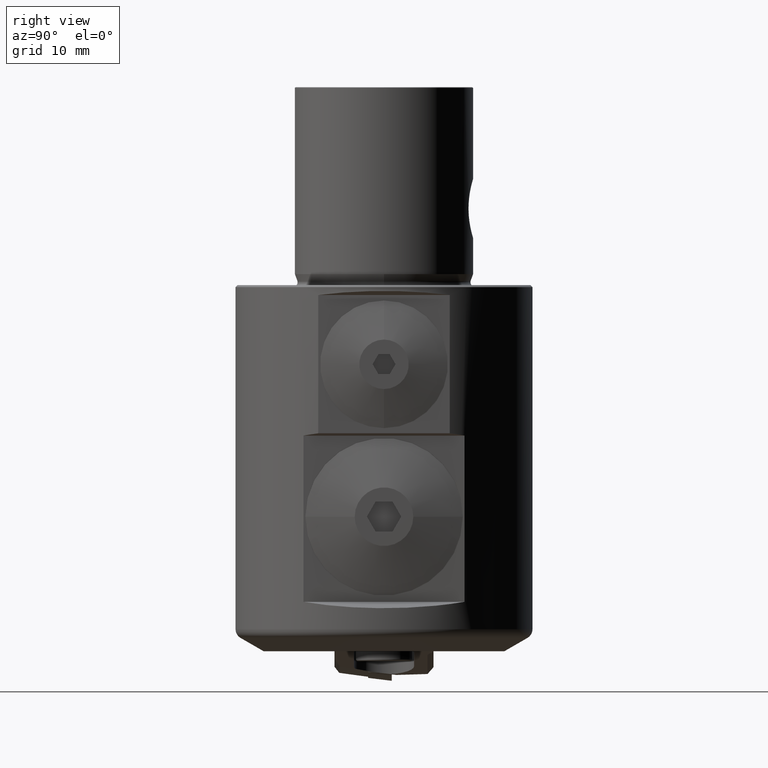
[diagram: clean part render]
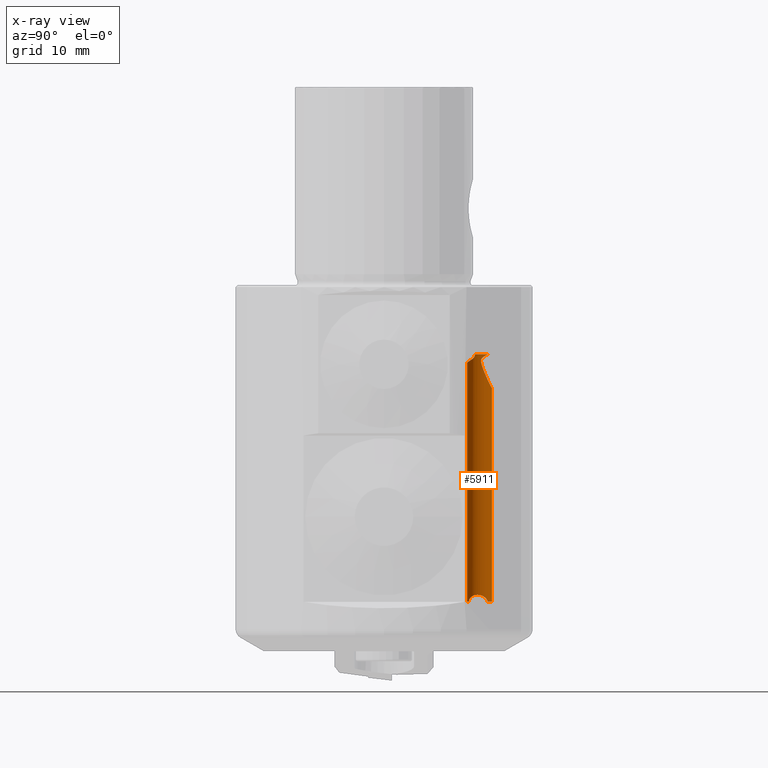
[diagram: x-ray — body ghosted, one internal face saturated and labeled with its STEP entity id]
A machine part, right view, then the same camera in x-ray: the body is ghosted and one INTERNAL B-rep face — a face not visible from any outside direction — is saturated and labeled: STEP entity #5911.
In plain terms, the highlighted cylindrical surface (edge-blend (fillet) strip) has radius 1.25 mm, axis along (-0, -0, 1).
Its self-contained STEP definition (entity closure, byte-faithful):
#2031=EDGE_CURVE('NONE',#3385,#2819,#5971,.T.);
#2607=EDGE_CURVE('NONE',#4941,#3607,#6603,.T.);
#2619=EDGE_CURVE('NONE',#4433,#4907,#6616,.T.);
#2819=VERTEX_POINT('NONE',#6841);
#2913=EDGE_CURVE('NONE',#4907,#3607,#6947,.T.);
#3385=VERTEX_POINT('NONE',#7471);
#3607=VERTEX_POINT('NONE',#7725);
#3823=EDGE_CURVE('NONE',#4661,#3909,#7961,.T.);
#3909=VERTEX_POINT('NONE',#8059);
#4195=EDGE_CURVE('NONE',#5101,#4661,#8376,.F.);
#4433=VERTEX_POINT('NONE',#8638);
#4661=VERTEX_POINT('NONE',#8886);
#4875=EDGE_CURVE('NONE',#2819,#5739,#9117,.T.);
#4907=VERTEX_POINT('NONE',#9153);
#4941=VERTEX_POINT('NONE',#9190);
#5059=EDGE_CURVE('NONE',#5101,#3385,#9318,.T.);
#5101=VERTEX_POINT('NONE',#9362);
#5157=EDGE_CURVE('NONE',#4433,#5739,#9425,.F.);
#5249=EDGE_CURVE('NONE',#4941,#3909,#9519,.T.);
#5739=VERTEX_POINT('NONE',#10058);
#5911=ADVANCED_FACE('NONE',(#10260),#10261,.F.);
#5971=LINE('',#10326,#10327);
#6603=LINE('',#12375,#12376);
#6616=B_SPLINE_CURVE_WITH_KNOTS('',3,(#12395,#12396,#12397,#12398,#12399,#12400,#12401,#12402,#12403,#12404,#12405,#12406,#12407,#12408,#12409,#12410,#12411,#12412,#12413,#12414,#12415,#12416,#12417,#12418,#12419,#12420,#12421,#12422,#12423,#12424,#12425,#12426,#12427,#12428,#12429,#12430,#12431,#12432,#12433,#12434,#12435,#12436,#12437,#12438,#12439,#12440,#12441,#12442,#12443,#12444,#12445,#12446,#12447,#12448,#12449,#12450,#12451,#12452,#12453,#12454,#12455,#12456,#12457,#12458,#12459,#12460,#12461,#12462,#12463,#12464,#12465,#12466,#12467,#12468,#12469,#12470,#12471,#12472,#12473,#12474,#12475,#12476,#12477,#12478,#12479,#12480,#12481,#12482,#12483,#12484,#12485,#12486,#12487,#12488,#12489,#12490,#12491,#12492,#12493,#12494,#12495,#12496,#12497,#12498,#12499,#12500,#12501,#12502,#12503,#12504,#12505,#12506,#12507,#12508,#12509,#12510,#12511,#12512,#12513,#12514,#12515),.UNSPECIFIED.,.F.,.F.,(4,2,2,2,2,2,2,2,2,2,2,2,2,2,2,2,2,2,2,2,2,2,2,2,2,2,2,2,2,2,2,2,2,2,2,2,2,2,2,2,3,2,2,2,2,2,2,2,2,2,2,2,2,2,2,2,2,2,2,4),(-11.5365470004245,-11.23110935641,-10.9256717123955,-10.5484807908333,-10.3598853300522,-10.1712898692711,-10.0629567419816,-9.95462361469214,-9.73795736011315,-9.59705060385309,-9.45614384759303,-9.14952027422149,-8.84289670084996,-8.65169935049167,-8.46050200013338,-8.30345388366444,-8.14640576719549,-7.77890788196061,-7.41140999672572,-7.12461264874379,-6.83781530076185,-6.60561501329223,-6.48951486955742,-6.37341472582261,-6.05879165683006,-5.7441685878375,-5.27443510032478,-4.80470161281206,-4.04241157336173,-3.66126655363657,-3.47069404377399,-3.28012153391141,-3.07162769021202,-2.86313384651264,-2.47908204438133,-2.09503024225002,-1.61036804410629,-1.12570584596257,-0.640450281126018,-0.320225140563011,0.0,0.189886923469585,0.379773846939169,0.601056226035828,0.846906839294732,1.09275745255364,1.35961062493393,1.62646379731423,1.82445869834441,2.0224535993746,2.50462256871359,2.98679153805257,3.20666515179599,3.4265387655394,3.61378594546459,3.80103312538979,4.00610294360625,4.21117276182272,4.62131239825565,5.20650487187407),.UNSPECIFIED.);
#6841=CARTESIAN_POINT('',(-1.39755738355847,8.40357292619032,-7.85786083414262));
#6947=B_SPLINE_CURVE_WITH_KNOTS('',3,(#13584,#13585,#13586,#13587,#13588,#13589,#13590,#13591,#13592,#13593,#13594,#13595,#13596,#13597,#13598,#13599,#13600,#13601,#13602,#13603,#13604,#13605,#13606,#13607),.UNSPECIFIED.,.F.,.F.,(4,2,2,2,2,2,2,2,2,2,2,4),(4.39907328251806,5.41825940447634,5.94540453186222,6.20897709555516,6.4725496592481,6.63435642800295,6.7961631967578,7.03694043699321,7.27771767722862,7.59988317496715,7.92204867270569,8.56637966818275),.UNSPECIFIED.);
#7471=CARTESIAN_POINT('',(-1.3975573835584,8.40357292619033,-32.0));
#7725=CARTESIAN_POINT('',(-1.39755738354537,10.9035729261966,-10.3496145570443));
#7961=B_SPLINE_CURVE_WITH_KNOTS('',3,(#16061,#16062,#16063,#16064,#16065,#16066,#16067,#16068,#16069,#16070,#16071,#16072,#16073,#16074,#16075,#16076,#16077,#16078,#16079,#16080,#16081,#16082,#16083,#16084,#16085,#16086,#16087,#16088,#16089,#16090,#16091,#16092,#16093,#16094,#16095),.UNSPECIFIED.,.F.,.F.,(4,2,2,2,2,2,2,2,2,2,2,2,2,3,2,2,4),(-4.43116950336568,-4.01481923219622,-3.56680899807894,-3.11879876396166,-2.91438041926835,-2.70996207457504,-2.30112538518843,-1.93026238358463,-1.55939938198083,-1.18853638037703,-0.817673378773227,-0.408836689386614,-0.204418344693307,0.0,0.448010234117281,0.896020468234562,1.31237073940402),.UNSPECIFIED.);
#8059=CARTESIAN_POINT('',(-2.33232398178692,10.4834593080742,-32.0));
#8376=B_SPLINE_CURVE_WITH_KNOTS('',3,(#17129,#17130,#17131,#17132,#17133,#17134,#17135,#17136,#17137,#17138,#17139,#17140,#17141,#17142,#17143,#17144,#17145,#17146,#17147,#17148,#17149,#17150,#17151,#17152,#17153,#17154,#17155,#17156,#17157,#17158,#17159,#17160,#17161,#17162,#17163),.UNSPECIFIED.,.F.,.F.,(4,2,2,3,2,2,2,2,2,2,2,2,2,2,2,2,4),(-1.31237073940402,-0.896020468234562,-0.448010234117281,0.0,0.204418344693307,0.408836689386614,0.817673378773227,1.18853638037703,1.55939938198083,1.93026238358463,2.30112538518843,2.70996207457504,2.91438041926835,3.11879876396166,3.56680899807894,4.01481923219622,4.43116950336568),.UNSPECIFIED.);
#8638=CARTESIAN_POINT('',(-2.31155135492843,10.5062833226904,-7.0));
#8886=CARTESIAN_POINT('',(-2.63566458189184,9.48155384168245,-31.300513887052));
#9117=B_SPLINE_CURVE_WITH_KNOTS('',3,(#19131,#19132,#19133,#19134,#19135,#19136,#19137,#19138,#19139,#19140,#19141,#19142,#19143,#19144,#19145,#19146,#19147,#19148,#19149,#19150,#19151,#19152,#19153,#19154,#19155,#19156,#19157,#19158,#19159,#19160,#19161,#19162,#19163,#19164,#19165,#19166,#19167,#19168,#19169,#19170,#19171,#19172,#19173,#19174,#19175,#19176,#19177,#19178,#19179,#19180,#19181,#19182,#19183,#19184,#19185,#19186,#19187,#19188,#19189,#19190,#19191,#19192,#19193,#19194,#19195,#19196,#19197,#19198,#19199,#19200,#19201,#19202,#19203,#19204,#19205,#19206,#19207,#19208,#19209,#19210,#19211,#19212,#19213,#19214,#19215,#19216,#19217,#19218,#19219,#19220,#19221,#19222,#19223,#19224,#19225,#19226,#19227,#19228,#19229,#19230,#19231,#19232,#19233,#19234,#19235,#19236,#19237,#19238,#19239,#19240,#19241,#19242,#19243,#19244,#19245,#19246,#19247,#19248,#19249,#19250,#19251),.UNSPECIFIED.,.F.,.F.,(4,2,2,2,2,2,2,2,2,2,2,2,2,2,2,2,2,2,2,2,2,2,2,2,2,2,2,2,2,2,2,2,2,2,2,2,2,2,2,2,3,2,2,2,2,2,2,2,2,2,2,2,2,2,2,2,2,2,2,4),(-11.5365470004245,-11.23110935641,-10.9256717123955,-10.5484807908333,-10.3598853300522,-10.1712898692711,-10.0629567419816,-9.95462361469214,-9.73795736011315,-9.59705060385309,-9.45614384759303,-9.14952027422149,-8.84289670084996,-8.65169935049167,-8.46050200013338,-8.30345388366444,-8.14640576719549,-7.77890788196061,-7.41140999672572,-7.12461264874379,-6.83781530076185,-6.60561501329223,-6.48951486955742,-6.37341472582261,-6.05879165683006,-5.7441685878375,-5.27443510032478,-4.80470161281206,-4.04241157336173,-3.66126655363657,-3.47069404377399,-3.28012153391141,-3.07162769021202,-2.86313384651264,-2.47908204438133,-2.09503024225002,-1.61036804410629,-1.12570584596257,-0.640450281126018,-0.320225140563011,0.0,0.189886923469585,0.379773846939169,0.601056226035828,0.846906839294732,1.09275745255364,1.35961062493393,1.62646379731423,1.82445869834441,2.0224535993746,2.50462256871359,2.98679153805257,3.20666515179599,3.4265387655394,3.61378594546459,3.80103312538979,4.00610294360625,4.21117276182272,4.62131239825565,5.20650487187407),.UNSPECIFIED.);
#9153=CARTESIAN_POINT('',(-1.65350283058219,10.8770891411004,-10.3604591425008));
#9190=CARTESIAN_POINT('',(-1.3975573835584,10.9035729261903,-32.0));
#9318=CIRCLE('',#20152,1.25);
#9362=CARTESIAN_POINT('',(-1.99211279879495,8.55402581114118,-32.0));
#9425=CIRCLE('',#20586,1.25);
#9519=CIRCLE('',#20773,1.25);
#10058=CARTESIAN_POINT('',(-2.55102327181351,9.17189207268683,-7.0));
#10260=FACE_OUTER_BOUND('',#22813,.T.);
#10261=CYLINDRICAL_SURFACE('',#22814,1.25);
#10326=CARTESIAN_POINT('',(-1.3975573835584,8.40357292619032,-10.6833601636645));
#10327=VECTOR('',#22874,1000.0);
#12375=CARTESIAN_POINT('',(-1.3975573835584,10.9035729261903,-10.6833601636645));
#12376=VECTOR('',#23529,1000.0);
#12395=CARTESIAN_POINT('',(-0.259682372580339,9.13613649589993,-5.65031564858466));
#12396=CARTESIAN_POINT('',(-0.240034141508872,9.17934418255932,-5.74038694123965));
#12397=CARTESIAN_POINT('',(-0.221505760737178,9.22701258647837,-5.83998129436405));
#12398=CARTESIAN_POINT('',(-0.190923948502823,9.32328987723418,-6.03972157861944));
#12399=CARTESIAN_POINT('',(-0.178832392768359,9.37193066168875,-6.13984629392099));
#12400=CARTESIAN_POINT('',(-0.159394927975035,9.47280770301482,-6.34287771622979));
#12401=CARTESIAN_POINT('',(-0.151383600459477,9.53497812243579,-6.46581210110095));
#12402=CARTESIAN_POINT('',(-0.147234502745697,9.63566394972516,-6.64406701098731));
#12403=CARTESIAN_POINT('',(-0.147123435439577,9.6704824231644,-6.7023870340003));
#12404=CARTESIAN_POINT('',(-0.150316734770835,9.74446699116382,-6.81214748960025));
#12405=CARTESIAN_POINT('',(-0.153535722561911,9.78351953345543,-6.86366688642753));
#12406=CARTESIAN_POINT('',(-0.163275994108106,9.85282516670303,-6.93365362581182));
#12407=CARTESIAN_POINT('',(-0.168041808773527,9.88115293306742,-6.95802215610893));
#12408=CARTESIAN_POINT('',(-0.18113070135157,9.94306784179791,-6.99844803691743));
#12409=CARTESIAN_POINT('',(-0.189508319112525,9.97673379523446,-7.01436684892297));
#12410=CARTESIAN_POINT('',(-0.220642969938647,10.0809182102869,-7.04633642670336));
#12411=CARTESIAN_POINT('',(-0.250305576695184,10.1550632978442,-7.046807735075));
#12412=CARTESIAN_POINT('',(-0.304053282010464,10.2609766842164,-7.03680603008055));
#12413=CARTESIAN_POINT('',(-0.329592860850518,10.3051250705757,-7.0294586407444));
#12414=CARTESIAN_POINT('',(-0.38584402266892,10.389442815822,-7.01175351366134));
#12415=CARTESIAN_POINT('',(-0.416562167758232,10.4296278979736,-7.00149163778102));
#12416=CARTESIAN_POINT('',(-0.511286559289921,10.5407196980606,-6.97083854230305));
#12417=CARTESIAN_POINT('',(-0.591324222347012,10.6149681387011,-6.94640486691129));
#12418=CARTESIAN_POINT('',(-0.769194419442613,10.7395990081854,-6.90255653351781));
#12419=CARTESIAN_POINT('',(-0.867068964281463,10.7899395061371,-6.88319314596514));
#12420=CARTESIAN_POINT('',(-1.02111498791232,10.8472124805515,-6.86026249411004));
#12421=CARTESIAN_POINT('',(-1.08784214208139,10.8665820399021,-6.85215944656786));
#12422=CARTESIAN_POINT('',(-1.22399977489514,10.8934085593627,-6.84030055277166));
#12423=CARTESIAN_POINT('',(-1.29343367330575,10.9008570615227,-6.83656484769604));
#12424=CARTESIAN_POINT('',(-1.40942095553143,10.9046117415468,-6.83376445438866));
#12425=CARTESIAN_POINT('',(-1.46688729999888,10.9029628513409,-6.83376095226089));
#12426=CARTESIAN_POINT('',(-1.58087511247515,10.8913840719818,-6.83718188886828));
#12427=CARTESIAN_POINT('',(-1.63739658757794,10.8814563238937,-6.84061333412727));
#12428=CARTESIAN_POINT('',(-1.80683475793651,10.8409602816521,-6.85554094016526));
#12429=CARTESIAN_POINT('',(-1.92950208384939,10.792032656738,-6.87476853443132));
#12430=CARTESIAN_POINT('',(-2.15026557713969,10.6597966087052,-6.93048786677523));
#12431=CARTESIAN_POINT('',(-2.2484087722304,10.5765756506571,-6.96700080853866));
#12432=CARTESIAN_POINT('',(-2.38633415469425,10.4236187961049,-7.03874832717125));
#12433=CARTESIAN_POINT('',(-2.44332882955836,10.3447040669358,-7.07711244334147));
#12434=CARTESIAN_POINT('',(-2.53476917359774,10.1808769257668,-7.16542819561874));
#12435=CARTESIAN_POINT('',(-2.56926033390821,10.0959025551056,-7.2152177056802));
#12436=CARTESIAN_POINT('',(-2.61068020743527,9.96145995663026,-7.31590687630726));
#12437=CARTESIAN_POINT('',(-2.62406437057254,9.89846805709145,-7.37252161294586));
#12438=CARTESIAN_POINT('',(-2.63438515809029,9.83579616940277,-7.47541181100476));
#12439=CARTESIAN_POINT('',(-2.63643824821132,9.82020480222327,-7.51296176582107));
#12440=CARTESIAN_POINT('',(-2.63884936844579,9.80117446086506,-7.59068163910794));
#12441=CARTESIAN_POINT('',(-2.63923901577076,9.7975407150407,-7.63080275238828));
#12442=CARTESIAN_POINT('',(-2.63923901577076,9.7975407150407,-7.77437715663073));
#12443=CARTESIAN_POINT('',(-2.63655374948232,9.82183094689029,-7.88512000607231));
#12444=CARTESIAN_POINT('',(-2.62691839995029,9.88181437985211,-8.10510112828944));
#12445=CARTESIAN_POINT('',(-2.61970491100355,9.9184230844056,-8.21407711889735));
#12446=CARTESIAN_POINT('',(-2.59823368573031,10.005357403627,-8.4597163990022));
#12447=CARTESIAN_POINT('',(-2.57921649463592,10.0669654864206,-8.61931961021953));
#12448=CARTESIAN_POINT('',(-2.52684636233804,10.1938673827457,-8.93457313406245));
#12449=CARTESIAN_POINT('',(-2.49335337984781,10.259190336954,-9.09018843547117));
#12450=CARTESIAN_POINT('',(-2.39417519515952,10.4168090385897,-9.45621245778239));
#12451=CARTESIAN_POINT('',(-2.30772733018617,10.5244505853165,-9.69578467145272));
#12452=CARTESIAN_POINT('',(-2.1262564988678,10.6721905712947,-10.0031659531047));
#12453=CARTESIAN_POINT('',(-2.05793655468033,10.7187513499454,-10.0962436052494));
#12454=CARTESIAN_POINT('',(-1.93757410628749,10.781816632171,-10.2137196692079));
#12455=CARTESIAN_POINT('',(-1.89454815534911,10.8016546909799,-10.249077614011));
#12456=CARTESIAN_POINT('',(-1.79954360035856,10.838266412895,-10.3096547698546));
#12457=CARTESIAN_POINT('',(-1.74769324181138,10.8550952155348,-10.3350415896039));
#12458=CARTESIAN_POINT('',(-1.62295722754053,10.8849073581723,-10.3703551384703));
#12459=CARTESIAN_POINT('',(-1.54885590274155,10.8965181995595,-10.3766176491557));
#12460=CARTESIAN_POINT('',(-1.40348450962014,10.905678773836,-10.3563561468006));
#12461=CARTESIAN_POINT('',(-1.33217424291313,10.9033733670424,-10.3301878817198));
#12462=CARTESIAN_POINT('',(-1.15842850549418,10.8856970882728,-10.237926144453));
#12463=CARTESIAN_POINT('',(-1.05789193816938,10.860178701541,-10.1484100826159));
#12464=CARTESIAN_POINT('',(-0.881897136885676,10.7960984712429,-9.94676786077154));
#12465=CARTESIAN_POINT('',(-0.806635632712167,10.757446535544,-9.83449870750589));
#12466=CARTESIAN_POINT('',(-0.667175012561253,10.6720833618367,-9.59551037903923));
#12467=CARTESIAN_POINT('',(-0.594788152365488,10.6156183956262,-9.4439572195726));
#12468=CARTESIAN_POINT('',(-0.470023061822348,10.4959801756478,-9.13485888164565));
#12469=CARTESIAN_POINT('',(-0.417445214813673,10.4328337267808,-8.97738393868034));
#12470=CARTESIAN_POINT('',(-0.333072903472561,10.3129310993506,-8.68923225715878));
#12471=CARTESIAN_POINT('',(-0.290063724872317,10.2378857761639,-8.51546780700654));
#12472=CARTESIAN_POINT('',(-0.239315418458741,10.1261773016452,-8.27664858159798));
#12473=CARTESIAN_POINT('',(-0.219474364549142,10.0755629782592,-8.17278571889788));
#12474=CARTESIAN_POINT('',(-0.185073677210528,9.96315018587477,-7.97250392746365));
#12475=CARTESIAN_POINT('',(-0.170226775645058,9.90228254719796,-7.87561335245997));
#12476=CARTESIAN_POINT('',(-0.159722297631439,9.82753930239041,-7.80013556299379));
#12477=CARTESIAN_POINT('',(-0.153493358176052,9.78321809518698,-7.75537878591246));
#12478=CARTESIAN_POINT('',(-0.148168374884314,9.72743590376947,-7.71450739769864));
#12479=CARTESIAN_POINT('',(-0.147046829031624,9.60211921453419,-7.66851763759476));
#12480=CARTESIAN_POINT('',(-0.15179128914,9.53286663245896,-7.66262318191706));
#12481=CARTESIAN_POINT('',(-0.171880533243707,9.39734526846291,-7.66647653429205));
#12482=CARTESIAN_POINT('',(-0.192836738206678,9.31238697951861,-7.67979829172095));
#12483=CARTESIAN_POINT('',(-0.243017019634479,9.16774477034821,-7.70819697847907));
#12484=CARTESIAN_POINT('',(-0.279450140691217,9.08792737479152,-7.72741014907418));
#12485=CARTESIAN_POINT('',(-0.368913551584914,8.93802379188738,-7.76516882149996));
#12486=CARTESIAN_POINT('',(-0.421974341229244,8.86794004886728,-7.78365173064045));
#12487=CARTESIAN_POINT('',(-0.535462980536661,8.74421645042407,-7.81558981524956));
#12488=CARTESIAN_POINT('',(-0.607293630540064,8.68034727058811,-7.83171423885819));
#12489=CARTESIAN_POINT('',(-0.764893785288089,8.57125053979628,-7.85667675406081));
#12490=CARTESIAN_POINT('',(-0.850685865934601,8.52604315882224,-7.8654604258159));
#12491=CARTESIAN_POINT('',(-0.994358926735899,8.46855161075442,-7.87333932069186));
#12492=CARTESIAN_POINT('',(-1.06344016410516,8.44690115306995,-7.87489515394491));
#12493=CARTESIAN_POINT('',(-1.20429581090455,8.41650338533418,-7.87263597020646));
#12494=CARTESIAN_POINT('',(-1.27606954996099,8.40775402539273,-7.86880676122207));
#12495=CARTESIAN_POINT('',(-1.50173791396497,8.39767085465784,-7.84945055935386));
#12496=CARTESIAN_POINT('',(-1.67137110274729,8.42283657068133,-7.82130162612886));
#12497=CARTESIAN_POINT('',(-1.98113451753082,8.5359309210182,-7.73708132678958));
#12498=CARTESIAN_POINT('',(-2.12132311296559,8.62384182109432,-7.68120094934053));
#12499=CARTESIAN_POINT('',(-2.28110105846103,8.76680382782702,-7.58741653738124));
#12500=CARTESIAN_POINT('',(-2.3310241986888,8.81933984267799,-7.55263775305433));
#12501=CARTESIAN_POINT('',(-2.41754198621711,8.92766897779241,-7.47386978085692));
#12502=CARTESIAN_POINT('',(-2.45415935030062,8.98342501219816,-7.42985454901693));
#12503=CARTESIAN_POINT('',(-2.5047236551963,9.07145361721099,-7.33979575182398));
#12504=CARTESIAN_POINT('',(-2.52444652569525,9.11190345320062,-7.28793903346849));
#12505=CARTESIAN_POINT('',(-2.54761980553034,9.16301588231799,-7.16874760755458));
#12506=CARTESIAN_POINT('',(-2.55145547451277,9.17292836344998,-7.10116775216961));
#12507=CARTESIAN_POINT('',(-2.55145547451277,9.17292836344998,-6.97039541945573));
#12508=CARTESIAN_POINT('',(-2.54742619437411,9.16313492376328,-6.90097705170721));
#12509=CARTESIAN_POINT('',(-2.5352516489004,9.1355193953856,-6.76048993250152));
#12510=CARTESIAN_POINT('',(-2.52697732181431,9.11748141377216,-6.68947492123064));
#12511=CARTESIAN_POINT('',(-2.49764896638524,9.05839892522484,-6.47706350817758));
#12512=CARTESIAN_POINT('',(-2.47192113117553,9.01265641653121,-6.33655644276855));
#12513=CARTESIAN_POINT('',(-2.40519983100104,8.910397187116,-6.02806407437363));
#12514=CARTESIAN_POINT('',(-2.35316408674947,8.84248803625177,-5.83144560097488));
#12515=CARTESIAN_POINT('',(-2.2883204348908,8.7766229923965,-5.6387538220034));
#13584=CARTESIAN_POINT('',(-2.57064467521629,10.0852744505689,-8.66359853451214));
#13585=CARTESIAN_POINT('',(-2.52233924667476,10.2165375772324,-8.99693874674317));
#13586=CARTESIAN_POINT('',(-2.4446985523244,10.3588936924302,-9.3275269076988));
#13587=CARTESIAN_POINT('',(-2.26442037105315,10.5588190655491,-9.76708564294301));
#13588=CARTESIAN_POINT('',(-2.18386512526977,10.6331459207413,-9.92506159374269));
#13589=CARTESIAN_POINT('',(-2.0282014911094,10.7346023632172,-10.1259534854704));
#13590=CARTESIAN_POINT('',(-1.97071857332286,10.7666641990899,-10.1867799226084));
#13591=CARTESIAN_POINT('',(-1.84171742206828,10.824131696205,-10.2879252665208));
#13592=CARTESIAN_POINT('',(-1.77051084012575,10.8496417665084,-10.3285817842477));
#13593=CARTESIAN_POINT('',(-1.63755018832153,10.8814196130263,-10.366223779643));
#13594=CARTESIAN_POINT('',(-1.58009014957225,10.8915213135754,-10.3737290904417));
#13595=CARTESIAN_POINT('',(-1.46518088945,10.903077420696,-10.3680323395971));
#13596=CARTESIAN_POINT('',(-1.40773073336169,10.9045570265531,-10.3549004942318));
#13597=CARTESIAN_POINT('',(-1.28179410038357,10.9004802713169,-10.3087317395707));
#13598=CARTESIAN_POINT('',(-1.20766159217011,10.890971134957,-10.2646740086058));
#13599=CARTESIAN_POINT('',(-1.07326998784058,10.8627265051645,-10.1589720116678));
#13600=CARTESIAN_POINT('',(-1.01279172257716,10.8441179627486,-10.0975727728193));
#13601=CARTESIAN_POINT('',(-0.8939243755952,10.7999241149495,-9.95926488560894));
#13602=CARTESIAN_POINT('',(-0.83419714680081,10.7711864341072,-9.87464244636128));
#13603=CARTESIAN_POINT('',(-0.725141424947168,10.7091729823209,-9.6984895825801));
#13604=CARTESIAN_POINT('',(-0.675951525463932,10.6758523094529,-9.60688919966346));
#13605=CARTESIAN_POINT('',(-0.540466974705163,10.5706201654575,-9.32489692315218));
#13606=CARTESIAN_POINT('',(-0.466254359594753,10.4936278207515,-9.1274875646871));
#13607=CARTESIAN_POINT('',(-0.404020359017977,10.4121137496582,-8.9283697383049));
#16061=CARTESIAN_POINT('',(-2.49452258719703,9.05426720954309,-33.2663255496327));
#16062=CARTESIAN_POINT('',(-2.43289122167737,8.94145767120925,-33.2003257468719));
#16063=CARTESIAN_POINT('',(-2.35842709145628,8.84808608201334,-33.1066395363807));
#16064=CARTESIAN_POINT('',(-2.21613329651291,8.70303338242045,-32.9023715219562));
#16065=CARTESIAN_POINT('',(-2.13645853036896,8.64252179901619,-32.7743914201257));
#16066=CARTESIAN_POINT('',(-2.009407204343,8.56094351118587,-32.4982663802196));
#16067=CARTESIAN_POINT('',(-1.96251502065063,8.53852903992792,-32.3502986390291));
#16068=CARTESIAN_POINT('',(-1.96251502065063,8.53852903992792,-32.1328224460922));
#16069=CARTESIAN_POINT('',(-1.97257691677268,8.54346345572274,-32.0650164323796));
#16070=CARTESIAN_POINT('',(-2.01154043306911,8.56452963746319,-31.9353436526611));
#16071=CARTESIAN_POINT('',(-2.04024687372272,8.58069107393162,-31.8734231408358));
#16072=CARTESIAN_POINT('',(-2.14192894569242,8.6461457491395,-31.7009513448472));
#16073=CARTESIAN_POINT('',(-2.22963244278411,8.71390406034307,-31.6027171501015));
#16074=CARTESIAN_POINT('',(-2.37775638300082,8.8710996980537,-31.4581599424695));
#16075=CARTESIAN_POINT('',(-2.45016242442888,8.96792649240716,-31.3988585653793));
#16076=CARTESIAN_POINT('',(-2.56498273368259,9.18966942062328,-31.3195656108878));
#16077=CARTESIAN_POINT('',(-2.60710051335947,9.31476978434506,-31.2996603101288));
#16078=CARTESIAN_POINT('',(-2.65003363628786,9.55825562386827,-31.2996603101288));
#16079=CARTESIAN_POINT('',(-2.65324271385183,9.6902166415569,-31.3195656108878));
#16080=CARTESIAN_POINT('',(-2.6211874646197,9.9378576935407,-31.3988585653793));
#16081=CARTESIAN_POINT('',(-2.58626475587196,10.0536094423559,-31.4581599424695));
#16082=CARTESIAN_POINT('',(-2.50083785682855,10.2519863943952,-31.6027171501015));
#16083=CARTESIAN_POINT('',(-2.44159823510372,10.3456547420755,-31.7009513448472));
#16084=CARTESIAN_POINT('',(-2.36843515980351,10.441939334193,-31.8734231408358));
#16085=CARTESIAN_POINT('',(-2.34698746616956,10.4669442977305,-31.9353436526611));
#16086=CARTESIAN_POINT('',(-2.31757879592413,10.5000663406883,-32.0650164323796));
#16087=CARTESIAN_POINT('',(-2.30981137598449,10.5081445459523,-32.1328224460922));
#16088=CARTESIAN_POINT('',(-2.30981137598449,10.5081445459523,-32.2009618943233));
#16089=CARTESIAN_POINT('',(-2.30981137598449,10.5081445459523,-32.3502986390291));
#16090=CARTESIAN_POINT('',(-2.34620941430054,10.4710437613251,-32.4982663802196));
#16091=CARTESIAN_POINT('',(-2.43769719013221,10.3509311334975,-32.7743914201257));
#16092=CARTESIAN_POINT('',(-2.49187079951173,10.2668184701644,-32.9023715219562));
#16093=CARTESIAN_POINT('',(-2.5759722834991,10.081846174591,-33.1066395363807));
#16094=CARTESIAN_POINT('',(-2.61401071286177,9.96863734874176,-33.2003257468719));
#16095=CARTESIAN_POINT('',(-2.63334211778012,9.84155188954679,-33.2663255496327));
#17129=CARTESIAN_POINT('',(-2.63334211778012,9.84155188954679,-33.2663255496327));
#17130=CARTESIAN_POINT('',(-2.61401071286177,9.96863734874176,-33.2003257468719));
#17131=CARTESIAN_POINT('',(-2.5759722834991,10.081846174591,-33.1066395363807));
#17132=CARTESIAN_POINT('',(-2.49187079951173,10.2668184701644,-32.9023715219562));
#17133=CARTESIAN_POINT('',(-2.43769719013221,10.3509311334975,-32.7743914201257));
#17134=CARTESIAN_POINT('',(-2.34620941430054,10.4710437613251,-32.4982663802196));
#17135=CARTESIAN_POINT('',(-2.30981137598449,10.5081445459523,-32.3502986390291));
#17136=CARTESIAN_POINT('',(-2.30981137598449,10.5081445459523,-32.2009618943233));
#17137=CARTESIAN_POINT('',(-2.30981137598449,10.5081445459523,-32.1328224460922));
#17138=CARTESIAN_POINT('',(-2.31757879592413,10.5000663406883,-32.0650164323796));
#17139=CARTESIAN_POINT('',(-2.34698746616956,10.4669442977305,-31.9353436526611));
#17140=CARTESIAN_POINT('',(-2.36843515980351,10.441939334193,-31.8734231408358));
#17141=CARTESIAN_POINT('',(-2.44159823510372,10.3456547420755,-31.7009513448472));
#17142=CARTESIAN_POINT('',(-2.50083785682855,10.2519863943952,-31.6027171501015));
#17143=CARTESIAN_POINT('',(-2.58626475587196,10.0536094423559,-31.4581599424695));
#17144=CARTESIAN_POINT('',(-2.6211874646197,9.93785769354069,-31.3988585653793));
#17145=CARTESIAN_POINT('',(-2.65324271385183,9.69021664155689,-31.3195656108878));
#17146=CARTESIAN_POINT('',(-2.65003363628786,9.55825562386826,-31.2996603101288));
#17147=CARTESIAN_POINT('',(-2.60710051335947,9.31476978434506,-31.2996603101288));
#17148=CARTESIAN_POINT('',(-2.56498273368259,9.18966942062328,-31.3195656108878));
#17149=CARTESIAN_POINT('',(-2.45016242442888,8.96792649240716,-31.3988585653793));
#17150=CARTESIAN_POINT('',(-2.37775638300082,8.8710996980537,-31.4581599424695));
#17151=CARTESIAN_POINT('',(-2.22963244278411,8.71390406034307,-31.6027171501015));
#17152=CARTESIAN_POINT('',(-2.14192894569242,8.6461457491395,-31.7009513448472));
#17153=CARTESIAN_POINT('',(-2.04024687372272,8.58069107393162,-31.8734231408358));
#17154=CARTESIAN_POINT('',(-2.01154043306911,8.56452963746319,-31.9353436526611));
#17155=CARTESIAN_POINT('',(-1.97257691677268,8.54346345572274,-32.0650164323796));
#17156=CARTESIAN_POINT('',(-1.96251502065063,8.53852903992792,-32.1328224460922));
#17157=CARTESIAN_POINT('',(-1.96251502065063,8.53852903992792,-32.3502986390291));
#17158=CARTESIAN_POINT('',(-2.009407204343,8.56094351118587,-32.4982663802196));
#17159=CARTESIAN_POINT('',(-2.13645853036896,8.64252179901619,-32.7743914201257));
#17160=CARTESIAN_POINT('',(-2.21613329651291,8.70303338242045,-32.9023715219562));
#17161=CARTESIAN_POINT('',(-2.35842709145628,8.84808608201335,-33.1066395363807));
#17162=CARTESIAN_POINT('',(-2.43289122167737,8.94145767120925,-33.2003257468719));
#17163=CARTESIAN_POINT('',(-2.49452258719703,9.05426720954309,-33.2663255496327));
#19131=CARTESIAN_POINT('',(-0.259682372580339,9.13613649589993,-5.65031564858466));
#19132=CARTESIAN_POINT('',(-0.240034141508872,9.17934418255932,-5.74038694123965));
#19133=CARTESIAN_POINT('',(-0.221505760737178,9.22701258647837,-5.83998129436405));
#19134=CARTESIAN_POINT('',(-0.190923948502823,9.32328987723418,-6.03972157861944));
#19135=CARTESIAN_POINT('',(-0.178832392768359,9.37193066168875,-6.13984629392099));
#19136=CARTESIAN_POINT('',(-0.159394927975035,9.47280770301482,-6.34287771622979));
#19137=CARTESIAN_POINT('',(-0.151383600459477,9.53497812243579,-6.46581210110095));
#19138=CARTESIAN_POINT('',(-0.147234502745697,9.63566394972516,-6.64406701098731));
#19139=CARTESIAN_POINT('',(-0.147123435439577,9.6704824231644,-6.7023870340003));
#19140=CARTESIAN_POINT('',(-0.150316734770835,9.74446699116382,-6.81214748960025));
#19141=CARTESIAN_POINT('',(-0.153535722561911,9.78351953345543,-6.86366688642753));
#19142=CARTESIAN_POINT('',(-0.163275994108106,9.85282516670303,-6.93365362581182));
#19143=CARTESIAN_POINT('',(-0.168041808773527,9.88115293306742,-6.95802215610893));
#19144=CARTESIAN_POINT('',(-0.18113070135157,9.94306784179791,-6.99844803691743));
#19145=CARTESIAN_POINT('',(-0.189508319112525,9.97673379523446,-7.01436684892297));
#19146=CARTESIAN_POINT('',(-0.220642969938647,10.0809182102869,-7.04633642670336));
#19147=CARTESIAN_POINT('',(-0.250305576695184,10.1550632978442,-7.046807735075));
#19148=CARTESIAN_POINT('',(-0.304053282010464,10.2609766842164,-7.03680603008055));
#19149=CARTESIAN_POINT('',(-0.329592860850518,10.3051250705757,-7.0294586407444));
#19150=CARTESIAN_POINT('',(-0.38584402266892,10.389442815822,-7.01175351366134));
#19151=CARTESIAN_POINT('',(-0.416562167758232,10.4296278979736,-7.00149163778102));
#19152=CARTESIAN_POINT('',(-0.511286559289921,10.5407196980606,-6.97083854230305));
#19153=CARTESIAN_POINT('',(-0.591324222347012,10.6149681387011,-6.94640486691129));
#19154=CARTESIAN_POINT('',(-0.769194419442613,10.7395990081854,-6.90255653351781));
#19155=CARTESIAN_POINT('',(-0.867068964281463,10.7899395061371,-6.88319314596514));
#19156=CARTESIAN_POINT('',(-1.02111498791232,10.8472124805515,-6.86026249411004));
#19157=CARTESIAN_POINT('',(-1.08784214208139,10.8665820399021,-6.85215944656786));
#19158=CARTESIAN_POINT('',(-1.22399977489514,10.8934085593627,-6.84030055277166));
#19159=CARTESIAN_POINT('',(-1.29343367330575,10.9008570615227,-6.83656484769604));
#19160=CARTESIAN_POINT('',(-1.40942095553143,10.9046117415468,-6.83376445438866));
#19161=CARTESIAN_POINT('',(-1.46688729999888,10.9029628513409,-6.83376095226089));
#19162=CARTESIAN_POINT('',(-1.58087511247515,10.8913840719818,-6.83718188886828));
#19163=CARTESIAN_POINT('',(-1.63739658757794,10.8814563238937,-6.84061333412727));
#19164=CARTESIAN_POINT('',(-1.80683475793651,10.8409602816521,-6.85554094016526));
#19165=CARTESIAN_POINT('',(-1.92950208384939,10.792032656738,-6.87476853443132));
#19166=CARTESIAN_POINT('',(-2.15026557713969,10.6597966087052,-6.93048786677523));
#19167=CARTESIAN_POINT('',(-2.2484087722304,10.5765756506571,-6.96700080853866));
#19168=CARTESIAN_POINT('',(-2.38633415469425,10.4236187961049,-7.03874832717125));
#19169=CARTESIAN_POINT('',(-2.44332882955836,10.3447040669358,-7.07711244334147));
#19170=CARTESIAN_POINT('',(-2.53476917359774,10.1808769257668,-7.16542819561874));
#19171=CARTESIAN_POINT('',(-2.56926033390821,10.0959025551056,-7.2152177056802));
#19172=CARTESIAN_POINT('',(-2.61068020743527,9.96145995663026,-7.31590687630726));
#19173=CARTESIAN_POINT('',(-2.62406437057254,9.89846805709145,-7.37252161294586));
#19174=CARTESIAN_POINT('',(-2.63438515809029,9.83579616940277,-7.47541181100476));
#19175=CARTESIAN_POINT('',(-2.63643824821132,9.82020480222327,-7.51296176582107));
#19176=CARTESIAN_POINT('',(-2.63884936844579,9.80117446086506,-7.59068163910794));
#19177=CARTESIAN_POINT('',(-2.63923901577076,9.7975407150407,-7.63080275238828));
#19178=CARTESIAN_POINT('',(-2.63923901577076,9.7975407150407,-7.77437715663073));
#19179=CARTESIAN_POINT('',(-2.63655374948232,9.82183094689029,-7.88512000607231));
#19180=CARTESIAN_POINT('',(-2.62691839995029,9.88181437985211,-8.10510112828944));
#19181=CARTESIAN_POINT('',(-2.61970491100355,9.9184230844056,-8.21407711889735));
#19182=CARTESIAN_POINT('',(-2.59823368573031,10.005357403627,-8.4597163990022));
#19183=CARTESIAN_POINT('',(-2.57921649463592,10.0669654864206,-8.61931961021953));
#19184=CARTESIAN_POINT('',(-2.52684636233804,10.1938673827457,-8.93457313406245));
#19185=CARTESIAN_POINT('',(-2.49335337984781,10.259190336954,-9.09018843547117));
#19186=CARTESIAN_POINT('',(-2.39417519515952,10.4168090385897,-9.45621245778239));
#19187=CARTESIAN_POINT('',(-2.30772733018617,10.5244505853165,-9.69578467145272));
#19188=CARTESIAN_POINT('',(-2.1262564988678,10.6721905712947,-10.0031659531047));
#19189=CARTESIAN_POINT('',(-2.05793655468033,10.7187513499454,-10.0962436052494));
#19190=CARTESIAN_POINT('',(-1.93757410628749,10.781816632171,-10.2137196692079));
#19191=CARTESIAN_POINT('',(-1.89454815534911,10.8016546909799,-10.249077614011));
#19192=CARTESIAN_POINT('',(-1.79954360035856,10.838266412895,-10.3096547698546));
#19193=CARTESIAN_POINT('',(-1.74769324181138,10.8550952155348,-10.3350415896039));
#19194=CARTESIAN_POINT('',(-1.62295722754053,10.8849073581723,-10.3703551384703));
#19195=CARTESIAN_POINT('',(-1.54885590274155,10.8965181995595,-10.3766176491557));
#19196=CARTESIAN_POINT('',(-1.40348450962014,10.905678773836,-10.3563561468006));
#19197=CARTESIAN_POINT('',(-1.33217424291313,10.9033733670424,-10.3301878817198));
#19198=CARTESIAN_POINT('',(-1.15842850549418,10.8856970882728,-10.237926144453));
#19199=CARTESIAN_POINT('',(-1.05789193816938,10.860178701541,-10.1484100826159));
#19200=CARTESIAN_POINT('',(-0.881897136885676,10.7960984712429,-9.94676786077154));
#19201=CARTESIAN_POINT('',(-0.806635632712167,10.757446535544,-9.83449870750589));
#19202=CARTESIAN_POINT('',(-0.667175012561253,10.6720833618367,-9.59551037903923));
#19203=CARTESIAN_POINT('',(-0.594788152365488,10.6156183956262,-9.4439572195726));
#19204=CARTESIAN_POINT('',(-0.470023061822348,10.4959801756478,-9.13485888164565));
#19205=CARTESIAN_POINT('',(-0.417445214813673,10.4328337267808,-8.97738393868034));
#19206=CARTESIAN_POINT('',(-0.333072903472561,10.3129310993506,-8.68923225715878));
#19207=CARTESIAN_POINT('',(-0.290063724872317,10.2378857761639,-8.51546780700654));
#19208=CARTESIAN_POINT('',(-0.239315418458741,10.1261773016452,-8.27664858159798));
#19209=CARTESIAN_POINT('',(-0.219474364549142,10.0755629782592,-8.17278571889788));
#19210=CARTESIAN_POINT('',(-0.185073677210528,9.96315018587477,-7.97250392746365));
#19211=CARTESIAN_POINT('',(-0.170226775645058,9.90228254719796,-7.87561335245997));
#19212=CARTESIAN_POINT('',(-0.159722297631439,9.82753930239041,-7.80013556299379));
#19213=CARTESIAN_POINT('',(-0.153493358176052,9.78321809518698,-7.75537878591246));
#19214=CARTESIAN_POINT('',(-0.148168374884314,9.72743590376947,-7.71450739769864));
#19215=CARTESIAN_POINT('',(-0.147046829031624,9.60211921453419,-7.66851763759476));
#19216=CARTESIAN_POINT('',(-0.15179128914,9.53286663245896,-7.66262318191706));
#19217=CARTESIAN_POINT('',(-0.171880533243707,9.39734526846291,-7.66647653429205));
#19218=CARTESIAN_POINT('',(-0.192836738206678,9.31238697951861,-7.67979829172095));
#19219=CARTESIAN_POINT('',(-0.243017019634479,9.16774477034821,-7.70819697847907));
#19220=CARTESIAN_POINT('',(-0.279450140691217,9.08792737479152,-7.72741014907418));
#19221=CARTESIAN_POINT('',(-0.368913551584914,8.93802379188738,-7.76516882149996));
#19222=CARTESIAN_POINT('',(-0.421974341229244,8.86794004886728,-7.78365173064045));
#19223=CARTESIAN_POINT('',(-0.535462980536661,8.74421645042407,-7.81558981524956));
#19224=CARTESIAN_POINT('',(-0.607293630540064,8.68034727058811,-7.83171423885819));
#19225=CARTESIAN_POINT('',(-0.764893785288089,8.57125053979628,-7.85667675406081));
#19226=CARTESIAN_POINT('',(-0.850685865934601,8.52604315882224,-7.8654604258159));
#19227=CARTESIAN_POINT('',(-0.994358926735899,8.46855161075442,-7.87333932069186));
#19228=CARTESIAN_POINT('',(-1.06344016410516,8.44690115306995,-7.87489515394491));
#19229=CARTESIAN_POINT('',(-1.20429581090455,8.41650338533418,-7.87263597020646));
#19230=CARTESIAN_POINT('',(-1.27606954996099,8.40775402539273,-7.86880676122207));
#19231=CARTESIAN_POINT('',(-1.50173791396497,8.39767085465784,-7.84945055935386));
#19232=CARTESIAN_POINT('',(-1.67137110274729,8.42283657068133,-7.82130162612886));
#19233=CARTESIAN_POINT('',(-1.98113451753082,8.5359309210182,-7.73708132678958));
#19234=CARTESIAN_POINT('',(-2.12132311296559,8.62384182109432,-7.68120094934053));
#19235=CARTESIAN_POINT('',(-2.28110105846103,8.76680382782702,-7.58741653738124));
#19236=CARTESIAN_POINT('',(-2.3310241986888,8.81933984267799,-7.55263775305433));
#19237=CARTESIAN_POINT('',(-2.41754198621711,8.92766897779241,-7.47386978085692));
#19238=CARTESIAN_POINT('',(-2.45415935030062,8.98342501219816,-7.42985454901693));
#19239=CARTESIAN_POINT('',(-2.5047236551963,9.07145361721099,-7.33979575182398));
#19240=CARTESIAN_POINT('',(-2.52444652569525,9.11190345320062,-7.28793903346849));
#19241=CARTESIAN_POINT('',(-2.54761980553034,9.16301588231799,-7.16874760755458));
#19242=CARTESIAN_POINT('',(-2.55145547451277,9.17292836344998,-7.10116775216961));
#19243=CARTESIAN_POINT('',(-2.55145547451277,9.17292836344998,-6.97039541945573));
#19244=CARTESIAN_POINT('',(-2.54742619437411,9.16313492376328,-6.90097705170721));
#19245=CARTESIAN_POINT('',(-2.5352516489004,9.1355193953856,-6.76048993250152));
#19246=CARTESIAN_POINT('',(-2.52697732181431,9.11748141377216,-6.68947492123064));
#19247=CARTESIAN_POINT('',(-2.49764896638524,9.05839892522484,-6.47706350817758));
#19248=CARTESIAN_POINT('',(-2.47192113117553,9.01265641653121,-6.33655644276855));
#19249=CARTESIAN_POINT('',(-2.40519983100104,8.910397187116,-6.02806407437363));
#19250=CARTESIAN_POINT('',(-2.35316408674947,8.84248803625177,-5.83144560097488));
#19251=CARTESIAN_POINT('',(-2.2883204348908,8.7766229923965,-5.6387538220034));
#20152=AXIS2_PLACEMENT_3D('',#26365,#26366,#26367);
#20586=AXIS2_PLACEMENT_3D('',#26469,#26470,#26471);
#20773=AXIS2_PLACEMENT_3D('',#26524,#26525,#26526);
#22813=EDGE_LOOP('',(#27372,#27373,#27374,#27375,#27376,#27377,#27378,#27379,#27380,#27381));
#22814=AXIS2_PLACEMENT_3D('',#27382,#27383,#27384);
#22874=DIRECTION('',(0.0,-0.0,1.0));
#23529=DIRECTION('',(0.0,-0.0,1.0));
#26365=CARTESIAN_POINT('',(-1.3975573835584,9.65357292619033,-32.0));
#26366=DIRECTION('',(0.0,-0.0,1.0));
#26367=DIRECTION('',(0.0,1.0,0.0));
#26469=CARTESIAN_POINT('',(-1.3975573835584,9.65357292619033,-7.0));
#26470=DIRECTION('',(0.0,0.0,-1.0));
#26471=DIRECTION('',(0.0,1.0,0.0));
#26524=CARTESIAN_POINT('',(-1.3975573835584,9.65357292619033,-32.0));
#26525=DIRECTION('',(0.0,-0.0,1.0));
#26526=DIRECTION('',(0.0,1.0,0.0));
#27372=ORIENTED_EDGE('',*,*,#2031,.F.);
#27373=ORIENTED_EDGE('',*,*,#5059,.F.);
#27374=ORIENTED_EDGE('',*,*,#4195,.T.);
#27375=ORIENTED_EDGE('',*,*,#3823,.T.);
#27376=ORIENTED_EDGE('',*,*,#5249,.F.);
#27377=ORIENTED_EDGE('',*,*,#2607,.T.);
#27378=ORIENTED_EDGE('',*,*,#2913,.F.);
#27379=ORIENTED_EDGE('',*,*,#2619,.F.);
#27380=ORIENTED_EDGE('',*,*,#5157,.T.);
#27381=ORIENTED_EDGE('',*,*,#4875,.F.);
#27382=CARTESIAN_POINT('',(-1.3975573835584,9.65357292619033,-10.6833601636645));
#27383=DIRECTION('',(-0.0,-0.0,1.0));
#27384=DIRECTION('',(0.0,1.0,0.0));